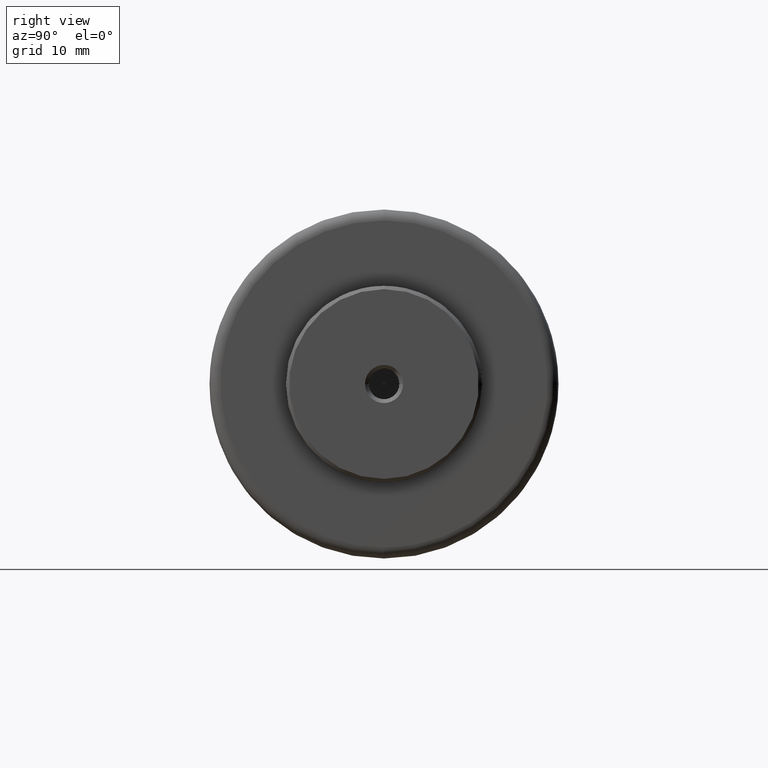
[diagram: clean part render]
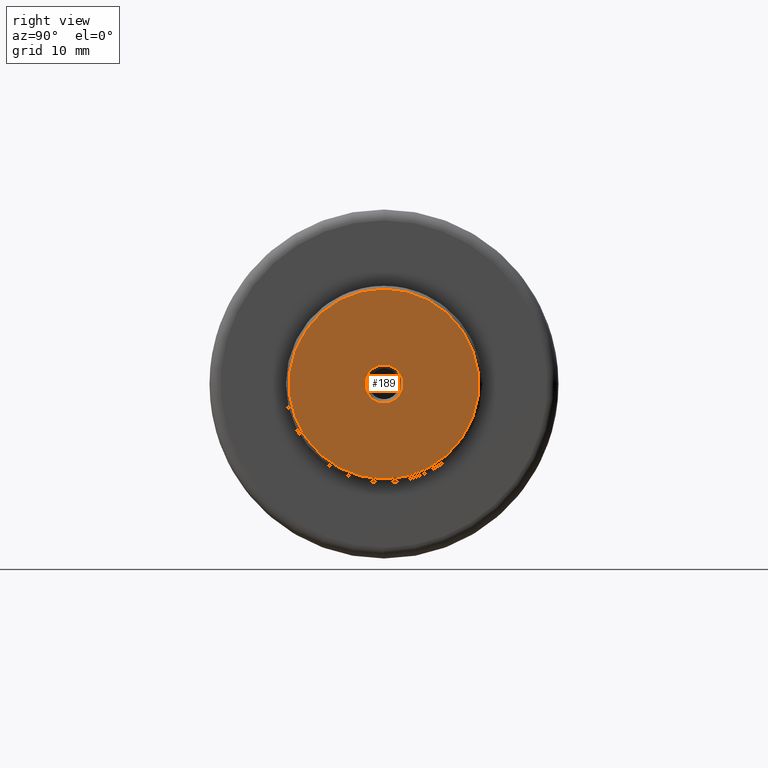
[diagram: same view with one face highlighted and labeled with its STEP entity id]
A machine part, right view. The second image highlights one B-rep face of the part: STEP entity #189.
In plain terms, the highlighted planar face has unit normal (-1, 0, 0).
Its self-contained STEP definition (entity closure, byte-faithful):
#53 = VERTEX_POINT ( 'NONE', #783 ) ;
#57 = EDGE_CURVE ( 'NONE', #1066, #894, #342, .T. ) ;
#62 = CARTESIAN_POINT ( 'NONE',  ( 49.50000000000009900, 0.0000000000000000000, 0.0000000000000000000 ) ) ;
#66 = DIRECTION ( 'NONE',  ( -3.965082230804002800E-015, 1.000000000000000000, 0.0000000000000000000 ) ) ;
#101 = DIRECTION ( 'NONE',  ( 0.0000000000000000000, 0.0000000000000000000, 1.000000000000000000 ) ) ;
#189 = ADVANCED_FACE ( 'NONE', ( #689, #528 ), #1021, .F. ) ;
#210 = AXIS2_PLACEMENT_3D ( 'NONE', #928, #543, #385 ) ;
#251 = CARTESIAN_POINT ( 'NONE',  ( 49.50000000000009900, 1.083812417245401600E-015, -8.699999999999901600 ) ) ;
#261 = CARTESIAN_POINT ( 'NONE',  ( 49.50000000000010700, -1.750000000000052800, 2.143131898507934600E-016 ) ) ;
#286 = EDGE_CURVE ( 'NONE', #894, #1066, #1221, .T. ) ;
#323 = CARTESIAN_POINT ( 'NONE',  ( 49.50000000000009200, 1.750000000000060000, 0.0000000000000000000 ) ) ;
#342 = CIRCLE ( 'NONE', #210, 1.750000000000056400 ) ;
#382 = CIRCLE ( 'NONE', #946, 8.699999999999901600 ) ;
#385 = DIRECTION ( 'NONE',  ( -3.965082230804002800E-015, 1.000000000000000000, 0.0000000000000000000 ) ) ;
#443 = AXIS2_PLACEMENT_3D ( 'NONE', #1157, #677, #66 ) ;
#528 = FACE_OUTER_BOUND ( 'NONE', #1171, .T. ) ;
#543 = DIRECTION ( 'NONE',  ( 1.000000000000000000, 2.478176394252581700E-015, -0.0000000000000000000 ) ) ;
#599 = ORIENTED_EDGE ( 'NONE', *, *, #286, .F. ) ;
#617 = CARTESIAN_POINT ( 'NONE',  ( 49.50000000000009900, 0.0000000000000000000, 0.0000000000000000000 ) ) ;
#677 = DIRECTION ( 'NONE',  ( 1.000000000000000000, 2.478176394252581700E-015, -0.0000000000000000000 ) ) ;
#689 = FACE_BOUND ( 'NONE', #937, .T. ) ;
#715 = DIRECTION ( 'NONE',  ( 0.0000000000000000000, 0.0000000000000000000, 1.000000000000000000 ) ) ;
#751 = EDGE_CURVE ( 'NONE', #788, #53, #382, .T. ) ;
#783 = CARTESIAN_POINT ( 'NONE',  ( 49.50000000000009900, 0.0000000000000000000, 8.699999999999901600 ) ) ;
#788 = VERTEX_POINT ( 'NONE', #251 ) ;
#894 = VERTEX_POINT ( 'NONE', #261 ) ;
#928 = CARTESIAN_POINT ( 'NONE',  ( 49.50000000000009900, 1.502314599606968100E-015, 0.0000000000000000000 ) ) ;
#933 = AXIS2_PLACEMENT_3D ( 'NONE', #1051, #1045, #101 ) ;
#937 = EDGE_LOOP ( 'NONE', ( #949, #599 ) ) ;
#946 = AXIS2_PLACEMENT_3D ( 'NONE', #617, #1105, #715 ) ;
#949 = ORIENTED_EDGE ( 'NONE', *, *, #57, .F. ) ;
#969 = DIRECTION ( 'NONE',  ( 0.0000000000000000000, 0.0000000000000000000, 1.000000000000000000 ) ) ;
#1021 = PLANE ( 'NONE',  #933 ) ;
#1023 = EDGE_CURVE ( 'NONE', #53, #788, #1130, .T. ) ;
#1044 = ORIENTED_EDGE ( 'NONE', *, *, #751, .T. ) ;
#1045 = DIRECTION ( 'NONE',  ( -1.000000000000000000, 0.0000000000000000000, 0.0000000000000000000 ) ) ;
#1050 = DIRECTION ( 'NONE',  ( 1.000000000000000000, -0.0000000000000000000, -0.0000000000000000000 ) ) ;
#1051 = CARTESIAN_POINT ( 'NONE',  ( 49.50000000000000000, -8.804400000000002900, -8.804400000000002900 ) ) ;
#1066 = VERTEX_POINT ( 'NONE', #323 ) ;
#1105 = DIRECTION ( 'NONE',  ( 1.000000000000000000, -0.0000000000000000000, -0.0000000000000000000 ) ) ;
#1118 = AXIS2_PLACEMENT_3D ( 'NONE', #62, #1050, #969 ) ;
#1130 = CIRCLE ( 'NONE', #1118, 8.699999999999901600 ) ;
#1157 = CARTESIAN_POINT ( 'NONE',  ( 49.50000000000009900, 1.502314599606968100E-015, 0.0000000000000000000 ) ) ;
#1171 = EDGE_LOOP ( 'NONE', ( #1235, #1044 ) ) ;
#1221 = CIRCLE ( 'NONE', #443, 1.750000000000056400 ) ;
#1235 = ORIENTED_EDGE ( 'NONE', *, *, #1023, .T. ) ;